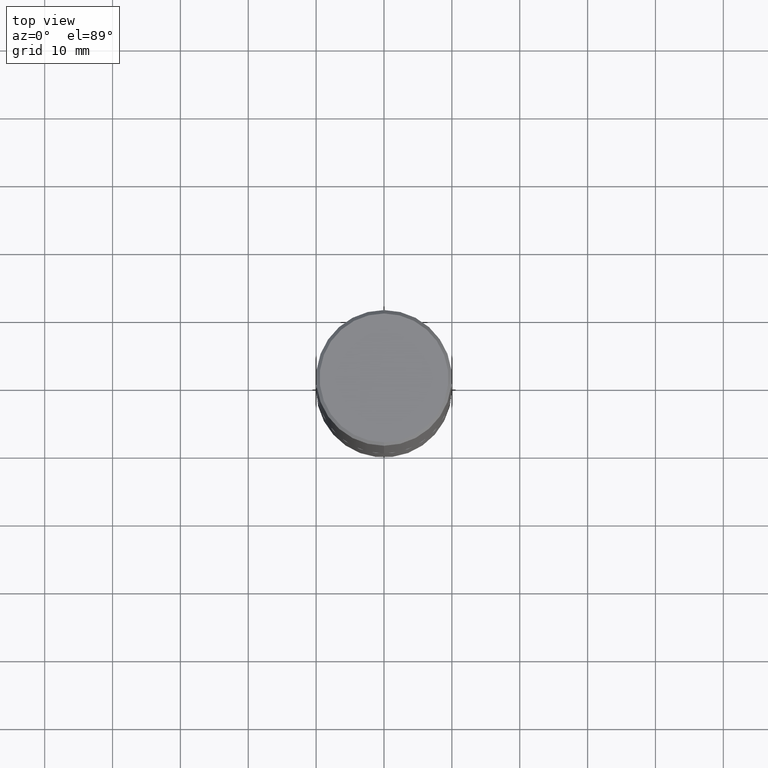
[diagram: clean part render]
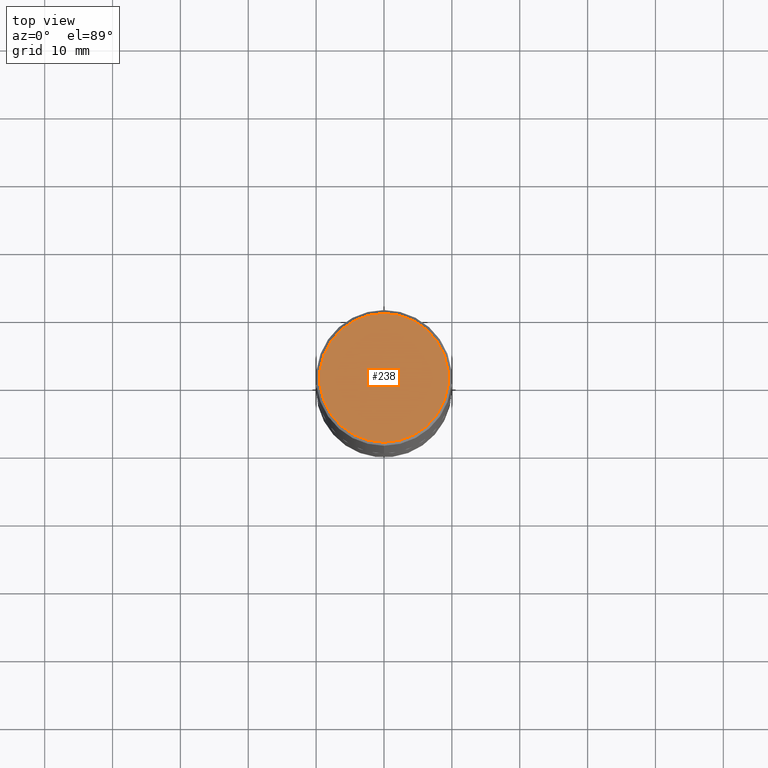
[diagram: same view with one face highlighted and labeled with its STEP entity id]
A machine part, top view. The second image highlights one B-rep face of the part: STEP entity #238.
In plain terms, the highlighted planar face has unit normal (0, -0, -1).
Its self-contained STEP definition (entity closure, byte-faithful):
#12 = CIRCLE ( 'NONE', #104, 0.3736999999999999211 ) ;
#18 = DIRECTION ( 'NONE',  ( 6.982962677686265922E-15, 1.000000000000000000, -3.494674072756603537E-15 ) ) ;
#70 = CARTESIAN_POINT ( 'NONE',  ( -4.513619861201807074E-45, 6.456031587477974852E-31, 1.847391617377768550E-16 ) ) ;
#91 = ORIENTED_EDGE ( 'NONE', *, *, #256, .T. ) ;
#103 = CARTESIAN_POINT ( 'NONE',  ( 2.679362779428219918E-15, 0.3736999999999999211, -1.121220539251365287E-15 ) ) ;
#104 = AXIS2_PLACEMENT_3D ( 'NONE', #344, #412, #345 ) ;
#116 = FACE_OUTER_BOUND ( 'NONE', #353, .T. ) ;
#122 = DIRECTION ( 'NONE',  ( -2.443239332009390737E-29, 3.494674072756603537E-15, 1.000000000000000000 ) ) ;
#125 = VERTEX_POINT ( 'NONE', #103 ) ;
#163 = CARTESIAN_POINT ( 'NONE',  ( -2.632373081744935921E-15, -0.3736999999999999211, 1.490698862726919145E-15 ) ) ;
#219 = CARTESIAN_POINT ( 'NONE',  ( 2.609533152651356620E-15, 0.3736999999999999211, -1.213590120120253998E-15 ) ) ;
#238 = ADVANCED_FACE ( 'NONE', ( #116 ), #289, .F. ) ;
#256 = EDGE_CURVE ( 'NONE', #410, #125, #12, .T. ) ;
#289 = PLANE ( 'NONE',  #403 ) ;
#326 = ORIENTED_EDGE ( 'NONE', *, *, #409, .T. ) ;
#339 = AXIS2_PLACEMENT_3D ( 'NONE', #70, #122, #359 ) ;
#344 = CARTESIAN_POINT ( 'NONE',  ( -4.513619861201807074E-45, 6.456031587477974852E-31, 1.847391617377768550E-16 ) ) ;
#345 = DIRECTION ( 'NONE',  ( -6.982962677686265133E-15, -1.000000000000000000, 3.494674072756603143E-15 ) ) ;
#353 = EDGE_LOOP ( 'NONE', ( #326, #91 ) ) ;
#359 = DIRECTION ( 'NONE',  ( -6.982962677686265133E-15, -1.000000000000000000, 3.494674072756603143E-15 ) ) ;
#375 = CIRCLE ( 'NONE', #339, 0.3736999999999999211 ) ;
#378 = DIRECTION ( 'NONE',  ( 2.443239332009390177E-29, -3.494674072756603537E-15, -1.000000000000000000 ) ) ;
#403 = AXIS2_PLACEMENT_3D ( 'NONE', #219, #378, #18 ) ;
#409 = EDGE_CURVE ( 'NONE', #125, #410, #375, .T. ) ;
#410 = VERTEX_POINT ( 'NONE', #163 ) ;
#412 = DIRECTION ( 'NONE',  ( -2.443239332009390737E-29, 3.494674072756603537E-15, 1.000000000000000000 ) ) ;